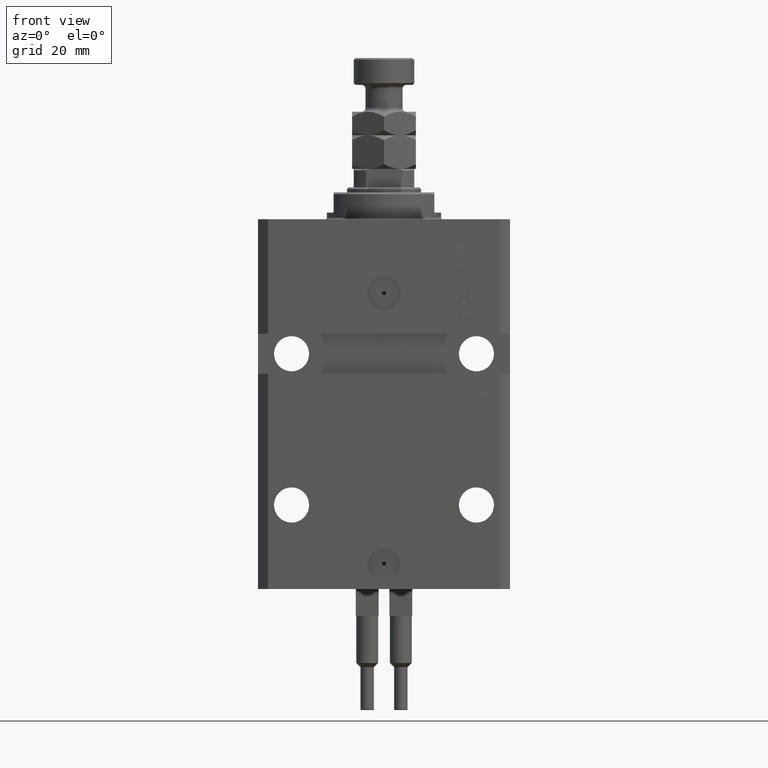
[diagram: clean part render]
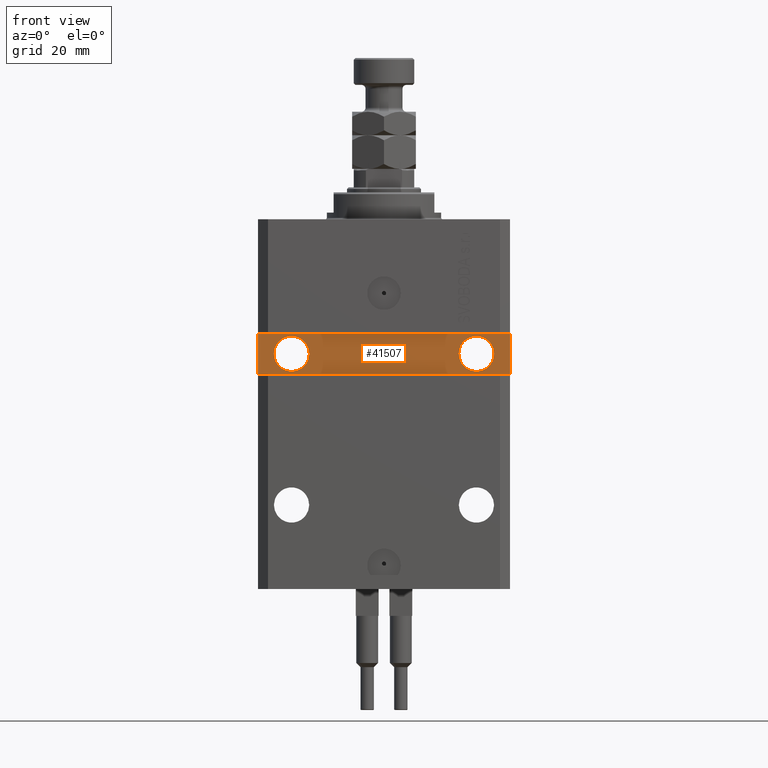
[diagram: same view with one face highlighted and labeled with its STEP entity id]
A machine part, front view. The second image highlights one B-rep face of the part: STEP entity #41507.
In plain terms, the highlighted planar face has unit normal (0, -1, 0).
Its self-contained STEP definition (entity closure, byte-faithful):
#324 = AXIS2_PLACEMENT_3D ( 'NONE', #36228, #17398, #13575 ) ;
#1725 = CARTESIAN_POINT ( 'NONE',  ( -27.49999999999999289, -24.50000000000000000, -40.00000000000000711 ) ) ;
#2554 = DIRECTION ( 'NONE',  ( 1.000000000000000000, 0.000000000000000000, 0.000000000000000000 ) ) ;
#2563 = EDGE_CURVE ( 'NONE', #14900, #8570, #49818, .T. ) ;
#4267 = VERTEX_POINT ( 'NONE', #15058 ) ;
#4588 = DIRECTION ( 'NONE',  ( 9.251858538542974046E-17, -1.000000000000000000, 0.000000000000000000 ) ) ;
#5459 = EDGE_CURVE ( 'NONE', #28923, #15564, #35779, .T. ) ;
#6057 = DIRECTION ( 'NONE',  ( 1.101411730780568590E-16, -1.000000000000000000, 0.000000000000000000 ) ) ;
#6312 = VECTOR ( 'NONE', #15166, 1000.000000000000000 ) ;
#7551 = CARTESIAN_POINT ( 'NONE',  ( -32.74999999999999289, -24.50000000000000000, -40.00000000000000711 ) ) ;
#8078 = CIRCLE ( 'NONE', #36520, 5.249999999999994671 ) ;
#8144 = ORIENTED_EDGE ( 'NONE', *, *, #10686, .F. ) ;
#8205 = EDGE_LOOP ( 'NONE', ( #24009, #9552, #26245, #38693 ) ) ;
#8570 = VERTEX_POINT ( 'NONE', #30275 ) ;
#9552 = ORIENTED_EDGE ( 'NONE', *, *, #36506, .T. ) ;
#10686 = EDGE_CURVE ( 'NONE', #4267, #32654, #8078, .T. ) ;
#10994 = DIRECTION ( 'NONE',  ( 1.171720209325604191E-16, -1.000000000000000000, 0.000000000000000000 ) ) ;
#12482 = CARTESIAN_POINT ( 'NONE',  ( 2.191435984341281325E-15, -24.49999999999999645, 0.000000000000000000 ) ) ;
#12727 = FACE_OUTER_BOUND ( 'NONE', #8205, .T. ) ;
#12931 = EDGE_CURVE ( 'NONE', #15564, #14900, #26935, .T. ) ;
#13306 = ORIENTED_EDGE ( 'NONE', *, *, #35949, .F. ) ;
#13575 = DIRECTION ( 'NONE',  ( 1.000000000000000000, 0.000000000000000000, 0.000000000000000000 ) ) ;
#13791 = EDGE_CURVE ( 'NONE', #18879, #17729, #16370, .T. ) ;
#14900 = VERTEX_POINT ( 'NONE', #19763 ) ;
#15058 = CARTESIAN_POINT ( 'NONE',  ( 22.25000000000001421, -24.49999999999999289, -40.00000000000000000 ) ) ;
#15166 = DIRECTION ( 'NONE',  ( 1.000000000000000000, 9.251858538542972814E-17, -9.251858538542972814E-17 ) ) ;
#15564 = VERTEX_POINT ( 'NONE', #26654 ) ;
#16370 = CIRCLE ( 'NONE', #22063, 5.249999999999997335 ) ;
#17200 = CARTESIAN_POINT ( 'NONE',  ( 37.49999999999999289, -24.49999999999999289, -46.00000000000000711 ) ) ;
#17398 = DIRECTION ( 'NONE',  ( 1.101411730780568590E-16, -1.000000000000000000, 0.000000000000000000 ) ) ;
#17729 = VERTEX_POINT ( 'NONE', #7551 ) ;
#18879 = VERTEX_POINT ( 'NONE', #22158 ) ;
#19535 = CARTESIAN_POINT ( 'NONE',  ( -37.50000000000000000, -24.50000000000000000, -34.00000000000000000 ) ) ;
#19763 = CARTESIAN_POINT ( 'NONE',  ( -37.50000000000000000, -24.50000000000000000, -46.00000000000000000 ) ) ;
#19853 = PLANE ( 'NONE',  #42832 ) ;
#22063 = AXIS2_PLACEMENT_3D ( 'NONE', #1725, #6057, #40159 ) ;
#22158 = CARTESIAN_POINT ( 'NONE',  ( -22.24999999999999645, -24.50000000000000000, -40.00000000000000711 ) ) ;
#22861 = DIRECTION ( 'NONE',  ( 0.000000000000000000, 0.000000000000000000, -1.000000000000000000 ) ) ;
#23062 = CARTESIAN_POINT ( 'NONE',  ( -37.50000000000000000, -24.50000000000000000, -46.00000000000000000 ) ) ;
#23755 = EDGE_LOOP ( 'NONE', ( #35424, #37670 ) ) ;
#23983 = EDGE_LOOP ( 'NONE', ( #13306, #8144 ) ) ;
#24009 = ORIENTED_EDGE ( 'NONE', *, *, #2563, .T. ) ;
#24183 = FACE_BOUND ( 'NONE', #23755, .T. ) ;
#26087 = LINE ( 'NONE', #17200, #36142 ) ;
#26245 = ORIENTED_EDGE ( 'NONE', *, *, #5459, .T. ) ;
#26301 = CARTESIAN_POINT ( 'NONE',  ( 32.75000000000000000, -24.49999999999999289, -40.00000000000000000 ) ) ;
#26654 = CARTESIAN_POINT ( 'NONE',  ( -37.50000000000000000, -24.50000000000000000, -34.00000000000000000 ) ) ;
#26935 = LINE ( 'NONE', #19535, #47230 ) ;
#27500 = FACE_BOUND ( 'NONE', #23983, .T. ) ;
#28473 = CARTESIAN_POINT ( 'NONE',  ( 37.49999999999999289, -24.49999999999999289, -33.99999999999997868 ) ) ;
#28923 = VERTEX_POINT ( 'NONE', #28473 ) ;
#30275 = CARTESIAN_POINT ( 'NONE',  ( 37.49999999999999289, -24.49999999999999289, -46.00000000000000711 ) ) ;
#30331 = DIRECTION ( 'NONE',  ( 1.000000000000000000, 0.000000000000000000, 0.000000000000000000 ) ) ;
#30433 = CIRCLE ( 'NONE', #45898, 5.249999999999994671 ) ;
#30904 = EDGE_CURVE ( 'NONE', #17729, #18879, #38515, .T. ) ;
#32065 = DIRECTION ( 'NONE',  ( 1.000000000000000000, 9.251858538542974046E-17, 0.000000000000000000 ) ) ;
#32654 = VERTEX_POINT ( 'NONE', #26301 ) ;
#35424 = ORIENTED_EDGE ( 'NONE', *, *, #13791, .F. ) ;
#35779 = LINE ( 'NONE', #39601, #49378 ) ;
#35949 = EDGE_CURVE ( 'NONE', #32654, #4267, #30433, .T. ) ;
#36142 = VECTOR ( 'NONE', #44682, 1000.000000000000000 ) ;
#36228 = CARTESIAN_POINT ( 'NONE',  ( -27.49999999999999289, -24.50000000000000000, -40.00000000000000711 ) ) ;
#36506 = EDGE_CURVE ( 'NONE', #8570, #28923, #26087, .T. ) ;
#36520 = AXIS2_PLACEMENT_3D ( 'NONE', #37416, #40479, #2554 ) ;
#37416 = CARTESIAN_POINT ( 'NONE',  ( 27.50000000000000711, -24.49999999999999289, -40.00000000000000000 ) ) ;
#37670 = ORIENTED_EDGE ( 'NONE', *, *, #30904, .F. ) ;
#38515 = CIRCLE ( 'NONE', #324, 5.249999999999997335 ) ;
#38693 = ORIENTED_EDGE ( 'NONE', *, *, #12931, .T. ) ;
#39601 = CARTESIAN_POINT ( 'NONE',  ( 37.49999999999999289, -24.49999999999999289, -33.99999999999997868 ) ) ;
#40159 = DIRECTION ( 'NONE',  ( 1.000000000000000000, 0.000000000000000000, 0.000000000000000000 ) ) ;
#40479 = DIRECTION ( 'NONE',  ( 1.171720209325604191E-16, -1.000000000000000000, 0.000000000000000000 ) ) ;
#41507 = ADVANCED_FACE ( 'NONE', ( #27500, #24183, #12727 ), #19853, .T. ) ;
#42832 = AXIS2_PLACEMENT_3D ( 'NONE', #12482, #4588, #32065 ) ;
#44682 = DIRECTION ( 'NONE',  ( 0.000000000000000000, 0.000000000000000000, 1.000000000000000000 ) ) ;
#45873 = CARTESIAN_POINT ( 'NONE',  ( 27.50000000000000711, -24.49999999999999289, -40.00000000000000000 ) ) ;
#45898 = AXIS2_PLACEMENT_3D ( 'NONE', #45873, #10994, #30331 ) ;
#47230 = VECTOR ( 'NONE', #22861, 1000.000000000000000 ) ;
#47259 = DIRECTION ( 'NONE',  ( -1.000000000000000000, -9.251858538542972814E-17, -2.775557561562891844E-16 ) ) ;
#49378 = VECTOR ( 'NONE', #47259, 1000.000000000000000 ) ;
#49818 = LINE ( 'NONE', #23062, #6312 ) ;